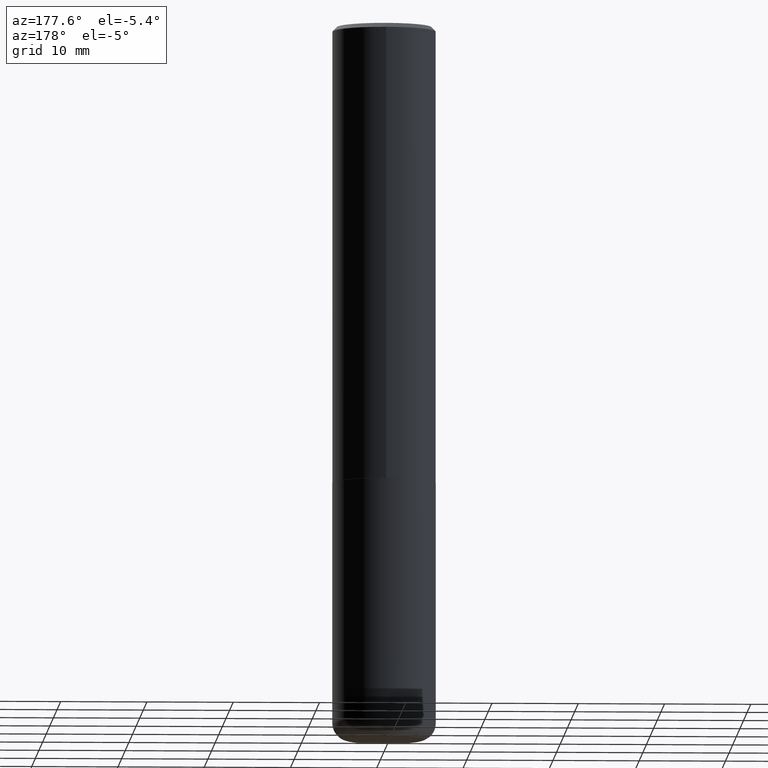
[diagram: clean part render]
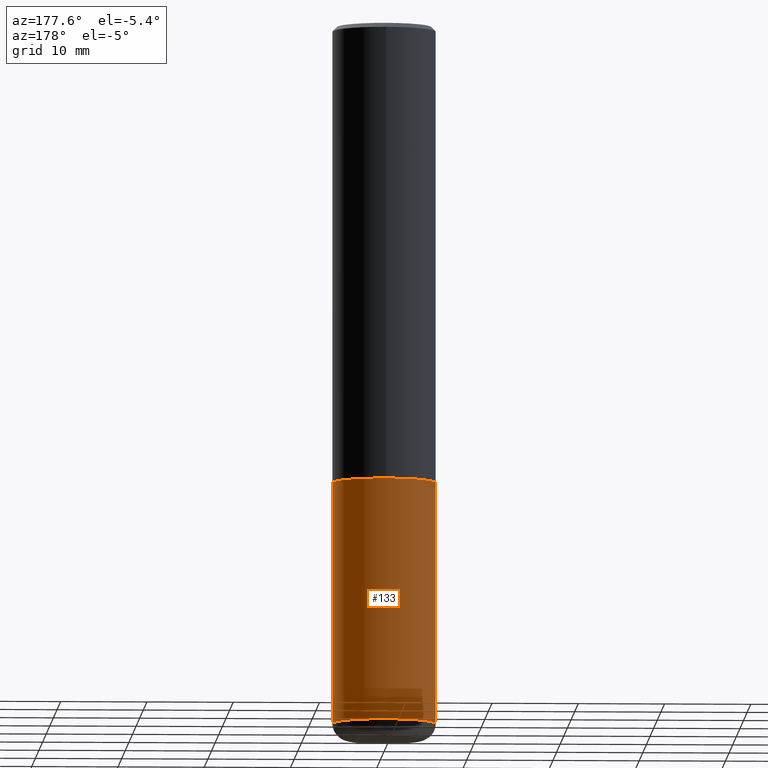
[diagram: same view with one face highlighted and labeled with its STEP entity id]
A machine part, auxiliary view. The second image highlights one B-rep face of the part: STEP entity #133.
In plain terms, the highlighted cylindrical surface (partial cylindrical patch) has radius 5.9995 mm, axis along (-0, 0, 1).
Its self-contained STEP definition (entity closure, byte-faithful):
#8 = AXIS2_PLACEMENT_3D ( 'NONE', #339, #281, #121 ) ;
#28 = VERTEX_POINT ( 'NONE', #93 ) ;
#53 = VERTEX_POINT ( 'NONE', #57 ) ;
#57 = CARTESIAN_POINT ( 'NONE',  ( 0.2361999999999999655, -1.278370977404028805E-14, -3.189000000000000501 ) ) ;
#65 = EDGE_CURVE ( 'NONE', #28, #377, #181, .T. ) ;
#66 = VECTOR ( 'NONE', #349, 39.37007874015748143 ) ;
#74 = ORIENTED_EDGE ( 'NONE', *, *, #298, .T. ) ;
#93 = CARTESIAN_POINT ( 'NONE',  ( 0.2361999999999999933, -8.934700746099602364E-15, -2.086600000000000232 ) ) ;
#99 = CARTESIAN_POINT ( 'NONE',  ( 0.000000000000000000, 0.000000000000000000, 0.000000000000000000 ) ) ;
#102 = ORIENTED_EDGE ( 'NONE', *, *, #275, .F. ) ;
#113 = FACE_OUTER_BOUND ( 'NONE', #309, .T. ) ;
#117 = CARTESIAN_POINT ( 'NONE',  ( -0.2361999999999999933, -7.531527533735093865E-15, -2.086600000000000232 ) ) ;
#121 = DIRECTION ( 'NONE',  ( 1.000000000000000000, -6.982962677686265133E-15, 0.000000000000000000 ) ) ;
#133 = ADVANCED_FACE ( 'NONE', ( #113 ), #137, .T. ) ;
#137 = CYLINDRICAL_SURFACE ( 'NONE', #267, 0.2361999999999999933 ) ;
#152 = EDGE_CURVE ( 'NONE', #304, #377, #169, .T. ) ;
#161 = VECTOR ( 'NONE', #335, 39.37007874015748143 ) ;
#169 = LINE ( 'NONE', #402, #161 ) ;
#181 = CIRCLE ( 'NONE', #8, 0.2361999999999999933 ) ;
#186 = ORIENTED_EDGE ( 'NONE', *, *, #65, .F. ) ;
#187 = DIRECTION ( 'NONE',  ( -2.445468806185136597E-29, 3.491481338843145583E-15, 1.000000000000000000 ) ) ;
#205 = DIRECTION ( 'NONE',  ( 1.000000000000000000, -6.982962677686266711E-15, 4.876176775795936353E-29 ) ) ;
#212 = DIRECTION ( 'NONE',  ( 1.000000000000000000, -6.982962677686265133E-15, 0.000000000000000000 ) ) ;
#244 = CARTESIAN_POINT ( 'NONE',  ( 7.798600022924401307E-29, -1.113433398957079310E-14, -3.189000000000000501 ) ) ;
#255 = CIRCLE ( 'NONE', #321, 0.2361999999999999933 ) ;
#267 = AXIS2_PLACEMENT_3D ( 'NONE', #99, #332, #205 ) ;
#270 = LINE ( 'NONE', #340, #66 ) ;
#275 = EDGE_CURVE ( 'NONE', #53, #28, #270, .T. ) ;
#281 = DIRECTION ( 'NONE',  ( -2.445468806185136597E-29, 3.491481338843145583E-15, 1.000000000000000000 ) ) ;
#298 = EDGE_CURVE ( 'NONE', #53, #304, #255, .T. ) ;
#304 = VERTEX_POINT ( 'NONE', #380 ) ;
#309 = EDGE_LOOP ( 'NONE', ( #74, #405, #186, #102 ) ) ;
#321 = AXIS2_PLACEMENT_3D ( 'NONE', #244, #187, #212 ) ;
#332 = DIRECTION ( 'NONE',  ( -2.445468806185136597E-29, 3.491481338843145583E-15, 1.000000000000000000 ) ) ;
#335 = DIRECTION ( 'NONE',  ( -2.445468806185136877E-29, 3.491481338843145188E-15, 1.000000000000000000 ) ) ;
#339 = CARTESIAN_POINT ( 'NONE',  ( 5.102715210985906276E-29, -7.285324961630107416E-15, -2.086600000000000232 ) ) ;
#340 = CARTESIAN_POINT ( 'NONE',  ( 0.2361999999999999933, -1.649375784469496131E-15, 1.151752954443000088E-29 ) ) ;
#349 = DIRECTION ( 'NONE',  ( -2.445468806185136877E-29, 3.491481338843145188E-15, 1.000000000000000000 ) ) ;
#377 = VERTEX_POINT ( 'NONE', #117 ) ;
#380 = CARTESIAN_POINT ( 'NONE',  ( -0.2361999999999999655, -9.456032047705438285E-15, -3.189000000000000501 ) ) ;
#402 = CARTESIAN_POINT ( 'NONE',  ( -0.2361999999999999933, 1.678301941865356591E-15, -1.161852468318208757E-29 ) ) ;
#405 = ORIENTED_EDGE ( 'NONE', *, *, #152, .T. ) ;